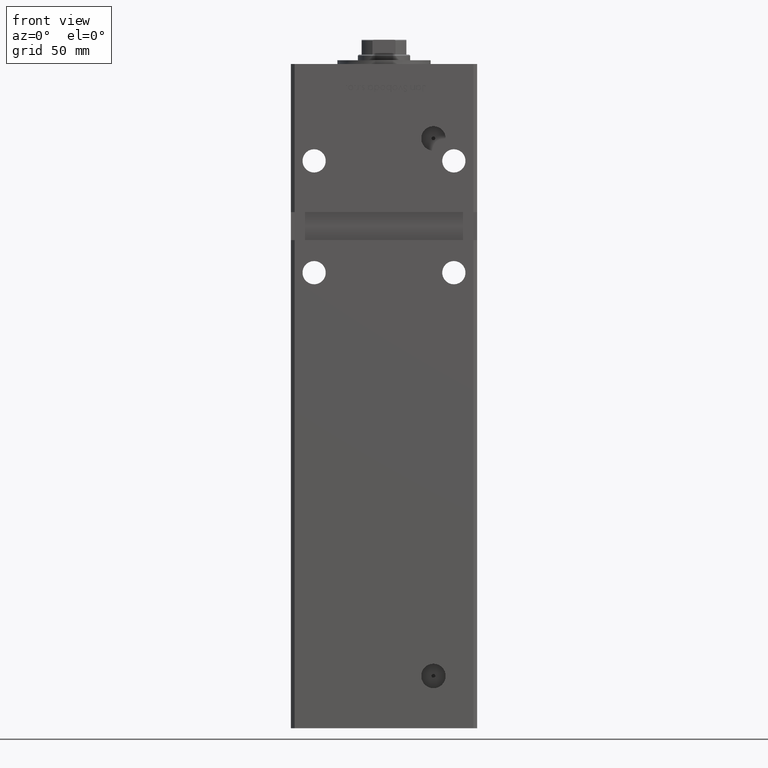
[diagram: clean part render]
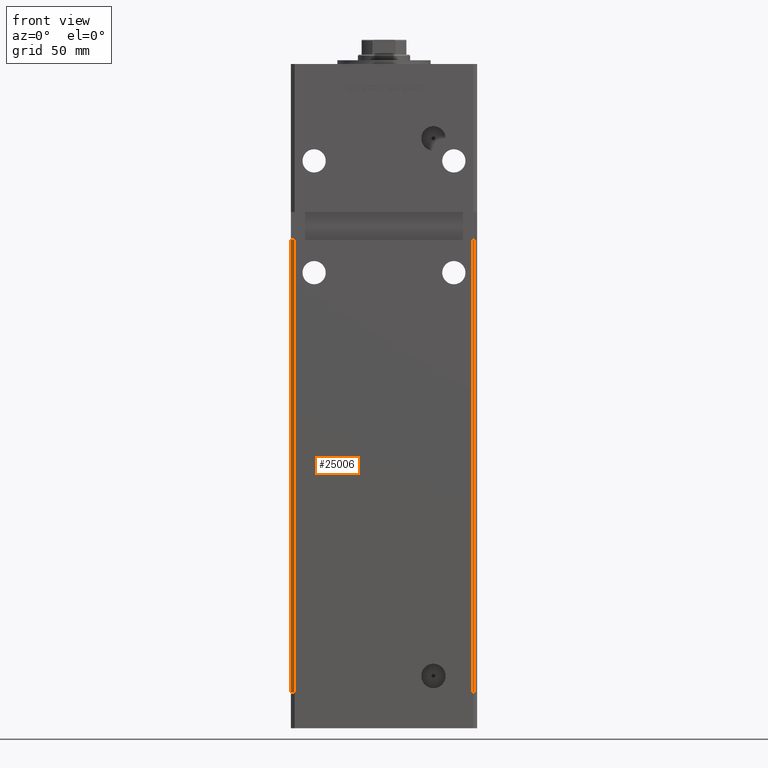
[diagram: same view with one face highlighted and labeled with its STEP entity id]
A machine part, front view. The second image highlights one B-rep face of the part: STEP entity #25006.
In plain terms, the highlighted planar face has unit normal (0.7071, 0.7071, 0).
Its self-contained STEP definition (entity closure, byte-faithful):
#252 = VERTEX_POINT ( 'NONE', #13746 ) ;
#1418 = EDGE_CURVE ( 'NONE', #7746, #252, #42328, .T. ) ;
#3620 = DIRECTION ( 'NONE',  ( -0.7071067811865474617, 0.7071067811865474617, 0.000000000000000000 ) ) ;
#4122 = CARTESIAN_POINT ( 'NONE',  ( -49.99999999999998579, -41.49999999999999289, 243.0000000000000000 ) ) ;
#5077 = VECTOR ( 'NONE', #38822, 1000.000000000000114 ) ;
#6071 = ORIENTED_EDGE ( 'NONE', *, *, #1418, .T. ) ;
#6918 = VECTOR ( 'NONE', #47980, 1000.000000000000000 ) ;
#7746 = VERTEX_POINT ( 'NONE', #28116 ) ;
#8681 = LINE ( 'NONE', #49272, #20066 ) ;
#10253 = ORIENTED_EDGE ( 'NONE', *, *, #10744, .T. ) ;
#10744 = EDGE_CURVE ( 'NONE', #33193, #28281, #8681, .T. ) ;
#11679 = DIRECTION ( 'NONE',  ( -0.7071067811865474617, 0.7071067811865474617, 0.000000000000000000 ) ) ;
#13746 = CARTESIAN_POINT ( 'NONE',  ( -47.99999999999998579, -43.50000000000000000, 0.000000000000000000 ) ) ;
#15442 = FACE_OUTER_BOUND ( 'NONE', #25760, .T. ) ;
#16032 = AXIS2_PLACEMENT_3D ( 'NONE', #48224, #27000, #3620 ) ;
#17330 = LINE ( 'NONE', #22145, #30905 ) ;
#20066 = VECTOR ( 'NONE', #11679, 1000.000000000000114 ) ;
#21905 = CARTESIAN_POINT ( 'NONE',  ( -47.99999999999998579, -43.50000000000000000, 243.0000000000000000 ) ) ;
#22145 = CARTESIAN_POINT ( 'NONE',  ( -47.99999999999998579, -43.50000000000000000, 318.5000000000000000 ) ) ;
#24023 = PLANE ( 'NONE',  #16032 ) ;
#25006 = ADVANCED_FACE ( 'NONE', ( #15442 ), #24023, .F. ) ;
#25760 = EDGE_LOOP ( 'NONE', ( #31976, #10253, #52635, #6071 ) ) ;
#27000 = DIRECTION ( 'NONE',  ( 0.7071067811865475727, 0.7071067811865475727, -0.000000000000000000 ) ) ;
#28116 = CARTESIAN_POINT ( 'NONE',  ( -49.99999999999998579, -41.49999999999999289, 0.000000000000000000 ) ) ;
#28281 = VERTEX_POINT ( 'NONE', #4122 ) ;
#30905 = VECTOR ( 'NONE', #46628, 1000.000000000000000 ) ;
#31976 = ORIENTED_EDGE ( 'NONE', *, *, #40493, .F. ) ;
#32370 = LINE ( 'NONE', #48777, #6918 ) ;
#33193 = VERTEX_POINT ( 'NONE', #21905 ) ;
#33322 = EDGE_CURVE ( 'NONE', #28281, #7746, #32370, .T. ) ;
#33994 = CARTESIAN_POINT ( 'NONE',  ( -49.99999999999998579, -41.49999999999999289, 0.000000000000000000 ) ) ;
#38822 = DIRECTION ( 'NONE',  ( 0.7071067811865474617, -0.7071067811865474617, 0.000000000000000000 ) ) ;
#40493 = EDGE_CURVE ( 'NONE', #33193, #252, #17330, .T. ) ;
#42328 = LINE ( 'NONE', #33994, #5077 ) ;
#46628 = DIRECTION ( 'NONE',  ( -0.000000000000000000, -0.000000000000000000, -1.000000000000000000 ) ) ;
#47980 = DIRECTION ( 'NONE',  ( -0.000000000000000000, -0.000000000000000000, -1.000000000000000000 ) ) ;
#48224 = CARTESIAN_POINT ( 'NONE',  ( -49.99999999999998579, -41.49999999999999289, 318.5000000000000000 ) ) ;
#48777 = CARTESIAN_POINT ( 'NONE',  ( -49.99999999999998579, -41.49999999999999289, 318.5000000000000000 ) ) ;
#49272 = CARTESIAN_POINT ( 'NONE',  ( -49.99999999999998579, -41.49999999999999289, 243.0000000000000000 ) ) ;
#52635 = ORIENTED_EDGE ( 'NONE', *, *, #33322, .T. ) ;